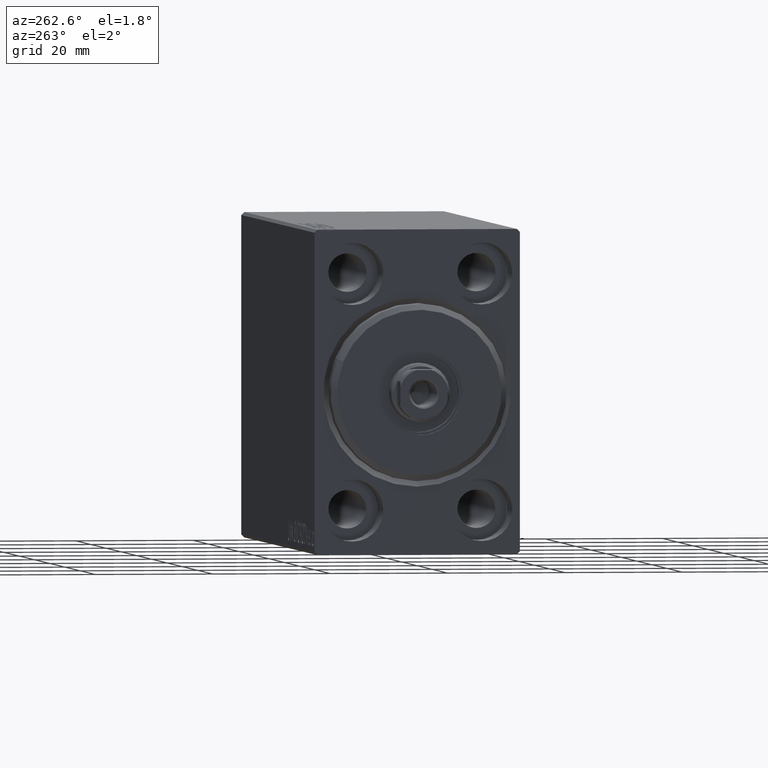
[diagram: clean part render]
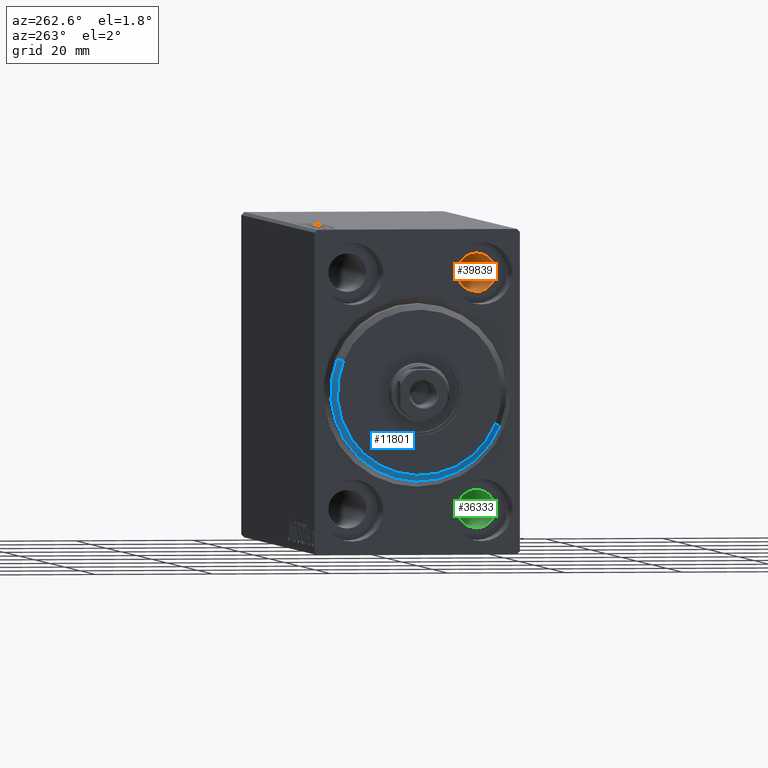
[diagram: same view with three faces highlighted in distinct colors, each labeled with its STEP entity id]
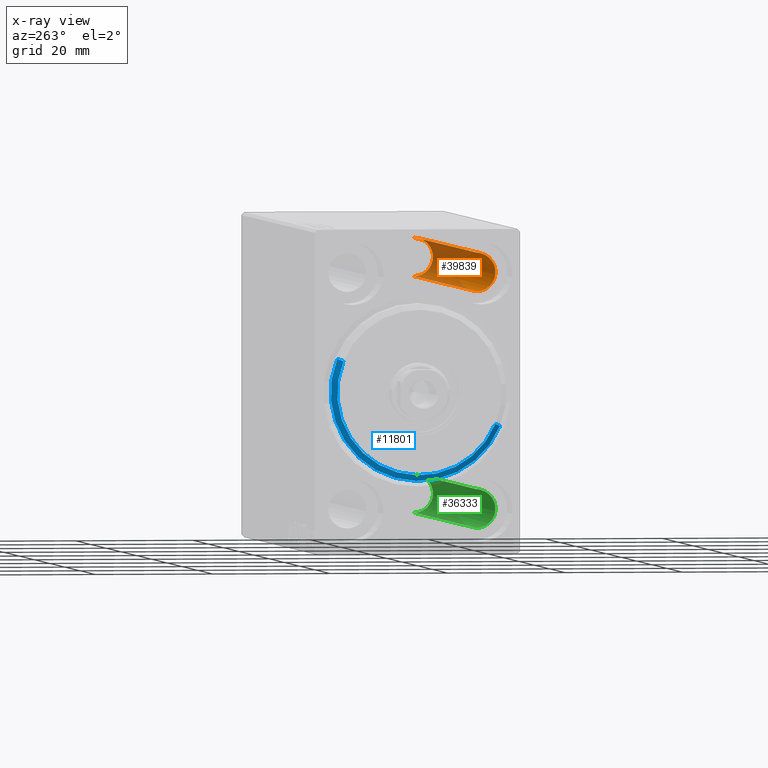
[diagram: x-ray of the same camera — body ghosted, the three highlighted faces saturated]
A machine part, auxiliary view with three faces highlighted in distinct colors.
The next image is the same camera in x-ray (body ghosted, the three faces saturated) — at least one of them is partly hidden behind the body in this view.
Their STEP definitions:

[orange] entity #39839 — the highlighted cylindrical surface (edge-blend (fillet) strip) has radius 3.25 mm, axis along (-1, -0, -0).
#1443 = EDGE_CURVE ( 'NONE', #6454, #11284, #17398, .T. ) ;
#2204 = AXIS2_PLACEMENT_3D ( 'NONE', #36937, #16969, #40720 ) ;
#4350 = CARTESIAN_POINT ( 'NONE',  ( 96.00000000000000000, -11.00000000000000355, 23.25000000000000000 ) ) ;
#5145 = EDGE_CURVE ( 'NONE', #7517, #11284, #30983, .T. ) ;
#5921 = EDGE_LOOP ( 'NONE', ( #23353, #37796, #36129, #27496 ) ) ;
#6454 = VERTEX_POINT ( 'NONE', #36639 ) ;
#7135 = EDGE_CURVE ( 'NONE', #43397, #6454, #24251, .T. ) ;
#7517 = VERTEX_POINT ( 'NONE', #36536 ) ;
#9506 = DIRECTION ( 'NONE',  ( -1.000000000000000000, -0.000000000000000000, -0.000000000000000000 ) ) ;
#10088 = FACE_OUTER_BOUND ( 'NONE', #5921, .T. ) ;
#11284 = VERTEX_POINT ( 'NONE', #11455 ) ;
#11455 = CARTESIAN_POINT ( 'NONE',  ( 7.000000000000006217, -11.00000000000000355, 23.25000000000000000 ) ) ;
#14687 = DIRECTION ( 'NONE',  ( -1.000000000000000000, -0.000000000000000000, -0.000000000000000000 ) ) ;
#15334 = CARTESIAN_POINT ( 'NONE',  ( 89.00000000000000000, -11.00000000000000355, 16.75000000000000000 ) ) ;
#16969 = DIRECTION ( 'NONE',  ( -1.000000000000000000, -0.000000000000000000, -0.000000000000000000 ) ) ;
#17398 = CIRCLE ( 'NONE', #41476, 3.249999999999999556 ) ;
#19074 = DIRECTION ( 'NONE',  ( 0.000000000000000000, 0.000000000000000000, -1.000000000000000000 ) ) ;
#20397 = VECTOR ( 'NONE', #14687, 1000.000000000000000 ) ;
#21455 = AXIS2_PLACEMENT_3D ( 'NONE', #43001, #9506, #19074 ) ;
#23154 = VECTOR ( 'NONE', #30765, 1000.000000000000000 ) ;
#23353 = ORIENTED_EDGE ( 'NONE', *, *, #41631, .F. ) ;
#24251 = LINE ( 'NONE', #24472, #20397 ) ;
#24472 = CARTESIAN_POINT ( 'NONE',  ( 96.00000000000000000, -11.00000000000000355, 16.75000000000000000 ) ) ;
#25671 = CIRCLE ( 'NONE', #21455, 3.249999999999999556 ) ;
#27405 = CYLINDRICAL_SURFACE ( 'NONE', #2204, 3.249999999999999556 ) ;
#27496 = ORIENTED_EDGE ( 'NONE', *, *, #5145, .F. ) ;
#30078 = CARTESIAN_POINT ( 'NONE',  ( 7.000000000000006217, -11.00000000000000355, 20.00000000000000000 ) ) ;
#30765 = DIRECTION ( 'NONE',  ( -1.000000000000000000, -0.000000000000000000, -0.000000000000000000 ) ) ;
#30983 = LINE ( 'NONE', #4350, #23154 ) ;
#36129 = ORIENTED_EDGE ( 'NONE', *, *, #1443, .T. ) ;
#36536 = CARTESIAN_POINT ( 'NONE',  ( 89.00000000000000000, -11.00000000000000355, 23.25000000000000000 ) ) ;
#36639 = CARTESIAN_POINT ( 'NONE',  ( 7.000000000000006217, -11.00000000000000355, 16.75000000000000000 ) ) ;
#36937 = CARTESIAN_POINT ( 'NONE',  ( 96.00000000000000000, -11.00000000000000355, 20.00000000000000000 ) ) ;
#36954 = DIRECTION ( 'NONE',  ( 0.000000000000000000, 0.000000000000000000, 1.000000000000000000 ) ) ;
#37796 = ORIENTED_EDGE ( 'NONE', *, *, #7135, .T. ) ;
#39839 = ADVANCED_FACE ( 'NONE', ( #10088 ), #27405, .F. ) ;
#40279 = DIRECTION ( 'NONE',  ( -1.000000000000000000, 0.000000000000000000, 0.000000000000000000 ) ) ;
#40720 = DIRECTION ( 'NONE',  ( 0.000000000000000000, 0.000000000000000000, 1.000000000000000000 ) ) ;
#41476 = AXIS2_PLACEMENT_3D ( 'NONE', #30078, #40279, #36954 ) ;
#41631 = EDGE_CURVE ( 'NONE', #43397, #7517, #25671, .T. ) ;
#43001 = CARTESIAN_POINT ( 'NONE',  ( 89.00000000000000000, -11.00000000000000355, 20.00000000000000000 ) ) ;
#43397 = VERTEX_POINT ( 'NONE', #15334 ) ;

[blue] entity #11801 — the highlighted conical surface has half-angle 45 deg.
#6 = EDGE_CURVE ( 'NONE', #15632, #10015, #29371, .T. ) ;
#916 = CARTESIAN_POINT ( 'NONE',  ( 3.000000000000000000, 1.775737858763662015E-15, -13.99999999999999645 ) ) ;
#2441 = VECTOR ( 'NONE', #25625, 999.9999999999998863 ) ;
#2688 = DIRECTION ( 'NONE',  ( 1.000000000000000000, -0.000000000000000000, 0.000000000000000000 ) ) ;
#2872 = DIRECTION ( 'NONE',  ( -1.000000000000000000, 0.000000000000000000, 0.000000000000000000 ) ) ;
#5605 = CARTESIAN_POINT ( 'NONE',  ( 3.000000000000000000, 1.714505518806294244E-15, -13.99999999999999645 ) ) ;
#6556 = CIRCLE ( 'NONE', #15112, 13.99999999999999645 ) ;
#9574 = ORIENTED_EDGE ( 'NONE', *, *, #32347, .F. ) ;
#10015 = VERTEX_POINT ( 'NONE', #39911 ) ;
#10534 = AXIS2_PLACEMENT_3D ( 'NONE', #19751, #2872, #43252 ) ;
#11044 = ORIENTED_EDGE ( 'NONE', *, *, #22330, .F. ) ;
#11801 = ADVANCED_FACE ( 'NONE', ( #39722 ), #24023, .T. ) ;
#14778 = VERTEX_POINT ( 'NONE', #26648 ) ;
#15112 = AXIS2_PLACEMENT_3D ( 'NONE', #19577, #2688, #16238 ) ;
#15632 = VERTEX_POINT ( 'NONE', #916 ) ;
#16238 = DIRECTION ( 'NONE',  ( 0.000000000000000000, 0.000000000000000000, -1.000000000000000000 ) ) ;
#17284 = CARTESIAN_POINT ( 'NONE',  ( 3.000000000000000000, 0.000000000000000000, 13.99999999999999645 ) ) ;
#18513 = CARTESIAN_POINT ( 'NONE',  ( 3.000000000000000000, 0.000000000000000000, 13.99999999999999645 ) ) ;
#18656 = DIRECTION ( 'NONE',  ( -1.000000000000000000, 0.000000000000000000, 0.000000000000000000 ) ) ;
#18857 = DIRECTION ( 'NONE',  ( 0.000000000000000000, 0.000000000000000000, -1.000000000000000000 ) ) ;
#19577 = CARTESIAN_POINT ( 'NONE',  ( 3.000000000000000000, 0.000000000000000000, 0.000000000000000000 ) ) ;
#19751 = CARTESIAN_POINT ( 'NONE',  ( 3.000000000000000000, 0.000000000000000000, 0.000000000000000000 ) ) ;
#22330 = EDGE_CURVE ( 'NONE', #28436, #14778, #29141, .T. ) ;
#24023 = CONICAL_SURFACE ( 'NONE', #10534, 13.99999999999999645, 0.7853981633974473908 ) ;
#25625 = DIRECTION ( 'NONE',  ( -0.7071067811865482389, 8.659560562354926695E-17, -0.7071067811865469066 ) ) ;
#26194 = EDGE_LOOP ( 'NONE', ( #39899, #41260, #9574, #11044 ) ) ;
#26575 = EDGE_CURVE ( 'NONE', #15632, #28436, #6556, .T. ) ;
#26648 = CARTESIAN_POINT ( 'NONE',  ( 1.999999999999995781, 0.000000000000000000, 15.00000000000000000 ) ) ;
#28436 = VERTEX_POINT ( 'NONE', #17284 ) ;
#29141 = LINE ( 'NONE', #18513, #43253 ) ;
#29371 = LINE ( 'NONE', #5605, #2441 ) ;
#32347 = EDGE_CURVE ( 'NONE', #14778, #10015, #35469, .T. ) ;
#35469 = CIRCLE ( 'NONE', #42535, 15.00000000000000000 ) ;
#39055 = CARTESIAN_POINT ( 'NONE',  ( 1.999999999999995781, 0.000000000000000000, 0.000000000000000000 ) ) ;
#39336 = DIRECTION ( 'NONE',  ( -0.7071067811865482389, 0.000000000000000000, 0.7071067811865469066 ) ) ;
#39722 = FACE_OUTER_BOUND ( 'NONE', #26194, .T. ) ;
#39899 = ORIENTED_EDGE ( 'NONE', *, *, #26575, .F. ) ;
#39911 = CARTESIAN_POINT ( 'NONE',  ( 1.999999999999995781, 1.836970198721029589E-15, -15.00000000000000000 ) ) ;
#41260 = ORIENTED_EDGE ( 'NONE', *, *, #6, .T. ) ;
#42535 = AXIS2_PLACEMENT_3D ( 'NONE', #39055, #18656, #18857 ) ;
#43252 = DIRECTION ( 'NONE',  ( 0.000000000000000000, 0.000000000000000000, 1.000000000000000000 ) ) ;
#43253 = VECTOR ( 'NONE', #39336, 999.9999999999998863 ) ;

[green] entity #36333 — the highlighted cylindrical surface (edge-blend (fillet) strip) has radius 3.25 mm, axis along (-1, -0, -0).
#154 = VECTOR ( 'NONE', #3852, 1000.000000000000000 ) ;
#313 = DIRECTION ( 'NONE',  ( 0.000000000000000000, 0.000000000000000000, 1.000000000000000000 ) ) ;
#1261 = VERTEX_POINT ( 'NONE', #6805 ) ;
#3087 = ORIENTED_EDGE ( 'NONE', *, *, #42090, .F. ) ;
#3852 = DIRECTION ( 'NONE',  ( -1.000000000000000000, -0.000000000000000000, -0.000000000000000000 ) ) ;
#4071 = LINE ( 'NONE', #24301, #154 ) ;
#6516 = CIRCLE ( 'NONE', #20710, 3.249999999999999556 ) ;
#6805 = CARTESIAN_POINT ( 'NONE',  ( 89.00000000000000000, -11.00000000000000355, -16.75000000000000000 ) ) ;
#7185 = CARTESIAN_POINT ( 'NONE',  ( 7.000000000000006217, -11.00000000000000355, -20.00000000000000000 ) ) ;
#8871 = EDGE_CURVE ( 'NONE', #13169, #14185, #18862, .T. ) ;
#10844 = CARTESIAN_POINT ( 'NONE',  ( 7.000000000000006217, -11.00000000000000355, -23.25000000000000000 ) ) ;
#11195 = DIRECTION ( 'NONE',  ( -1.000000000000000000, 0.000000000000000000, 0.000000000000000000 ) ) ;
#13169 = VERTEX_POINT ( 'NONE', #14602 ) ;
#13708 = CARTESIAN_POINT ( 'NONE',  ( 96.00000000000000000, -11.00000000000000355, -20.00000000000000000 ) ) ;
#14185 = VERTEX_POINT ( 'NONE', #10844 ) ;
#14602 = CARTESIAN_POINT ( 'NONE',  ( 89.00000000000000000, -11.00000000000000355, -23.25000000000000000 ) ) ;
#15660 = CIRCLE ( 'NONE', #31966, 3.249999999999999556 ) ;
#15958 = DIRECTION ( 'NONE',  ( -1.000000000000000000, -0.000000000000000000, -0.000000000000000000 ) ) ;
#17073 = CARTESIAN_POINT ( 'NONE',  ( 7.000000000000006217, -11.00000000000000355, -16.75000000000000000 ) ) ;
#18862 = LINE ( 'NONE', #29073, #38146 ) ;
#18968 = DIRECTION ( 'NONE',  ( 0.000000000000000000, 0.000000000000000000, -1.000000000000000000 ) ) ;
#20369 = DIRECTION ( 'NONE',  ( 0.000000000000000000, 0.000000000000000000, 1.000000000000000000 ) ) ;
#20710 = AXIS2_PLACEMENT_3D ( 'NONE', #38138, #41468, #18968 ) ;
#22285 = EDGE_CURVE ( 'NONE', #14185, #42697, #15660, .T. ) ;
#23712 = FACE_OUTER_BOUND ( 'NONE', #38667, .T. ) ;
#24301 = CARTESIAN_POINT ( 'NONE',  ( 96.00000000000000000, -11.00000000000000355, -16.75000000000000000 ) ) ;
#29073 = CARTESIAN_POINT ( 'NONE',  ( 96.00000000000000000, -11.00000000000000355, -23.25000000000000000 ) ) ;
#29872 = AXIS2_PLACEMENT_3D ( 'NONE', #13708, #43433, #20369 ) ;
#31966 = AXIS2_PLACEMENT_3D ( 'NONE', #7185, #11195, #313 ) ;
#33378 = ORIENTED_EDGE ( 'NONE', *, *, #22285, .T. ) ;
#33687 = CYLINDRICAL_SURFACE ( 'NONE', #29872, 3.249999999999999556 ) ;
#35786 = ORIENTED_EDGE ( 'NONE', *, *, #41876, .F. ) ;
#36333 = ADVANCED_FACE ( 'NONE', ( #23712 ), #33687, .F. ) ;
#38138 = CARTESIAN_POINT ( 'NONE',  ( 89.00000000000000000, -11.00000000000000355, -20.00000000000000000 ) ) ;
#38146 = VECTOR ( 'NONE', #15958, 1000.000000000000000 ) ;
#38667 = EDGE_LOOP ( 'NONE', ( #35786, #42514, #33378, #3087 ) ) ;
#41468 = DIRECTION ( 'NONE',  ( -1.000000000000000000, -0.000000000000000000, -0.000000000000000000 ) ) ;
#41876 = EDGE_CURVE ( 'NONE', #13169, #1261, #6516, .T. ) ;
#42090 = EDGE_CURVE ( 'NONE', #1261, #42697, #4071, .T. ) ;
#42514 = ORIENTED_EDGE ( 'NONE', *, *, #8871, .T. ) ;
#42697 = VERTEX_POINT ( 'NONE', #17073 ) ;
#43433 = DIRECTION ( 'NONE',  ( -1.000000000000000000, -0.000000000000000000, -0.000000000000000000 ) ) ;